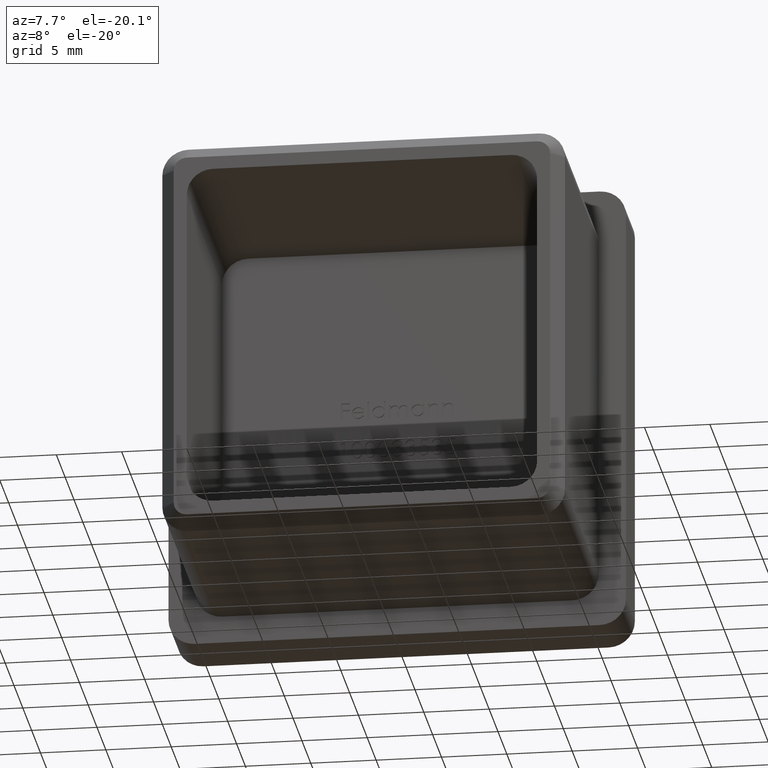
[diagram: clean part render]
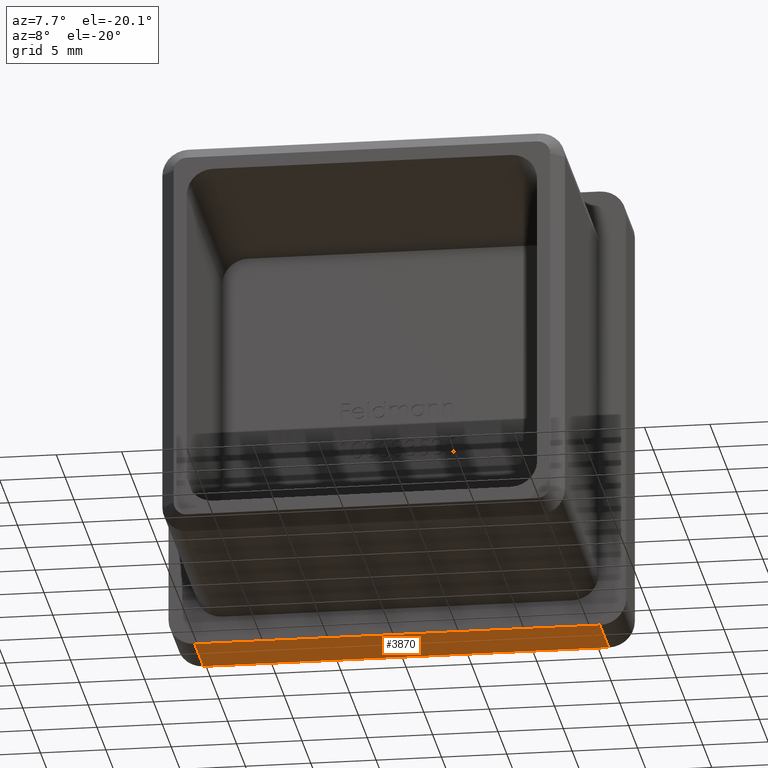
[diagram: same view with one face highlighted and labeled with its STEP entity id]
A machine part, auxiliary view. The second image highlights one B-rep face of the part: STEP entity #3870.
In plain terms, the highlighted planar face has unit normal (0, 0, 1).
Its self-contained STEP definition (entity closure, byte-faithful):
#361 = CARTESIAN_POINT ( 'NONE',  ( -17.50000000000000000, 5.000000000000000000, -17.50000000000000000 ) ) ;
#864 = LINE ( 'NONE', #12089, #6607 ) ;
#1294 = CARTESIAN_POINT ( 'NONE',  ( -15.50000000000000200, 5.000000000000000000, -17.50000000000000000 ) ) ;
#1671 = CARTESIAN_POINT ( 'NONE',  ( -17.50000000000000000, 5.000000000000000000, -17.50000000000000000 ) ) ;
#1787 = VERTEX_POINT ( 'NONE', #12824 ) ;
#2503 = ORIENTED_EDGE ( 'NONE', *, *, #7803, .T. ) ;
#2873 = CARTESIAN_POINT ( 'NONE',  ( -15.50000000000000200, 0.0000000000000000000, -17.50000000000000000 ) ) ;
#3044 = VERTEX_POINT ( 'NONE', #2873 ) ;
#3870 = ADVANCED_FACE ( 'NONE', ( #7010 ), #11447, .F. ) ;
#4874 = LINE ( 'NONE', #361, #11777 ) ;
#5376 = CARTESIAN_POINT ( 'NONE',  ( -17.50000000000000000, 0.0000000000000000000, -17.50000000000000000 ) ) ;
#5400 = ORIENTED_EDGE ( 'NONE', *, *, #13432, .T. ) ;
#5780 = EDGE_CURVE ( 'NONE', #8261, #3044, #10766, .T. ) ;
#6176 = DIRECTION ( 'NONE',  ( -0.0000000000000000000, 1.000000000000000000, -0.0000000000000000000 ) ) ;
#6412 = DIRECTION ( 'NONE',  ( -1.000000000000000000, -0.0000000000000000000, -0.0000000000000000000 ) ) ;
#6607 = VECTOR ( 'NONE', #8517, 1000.000000000000000 ) ;
#7010 = FACE_OUTER_BOUND ( 'NONE', #14365, .T. ) ;
#7247 = AXIS2_PLACEMENT_3D ( 'NONE', #1671, #15111, #8956 ) ;
#7803 = EDGE_CURVE ( 'NONE', #3044, #14786, #9321, .T. ) ;
#8261 = VERTEX_POINT ( 'NONE', #8697 ) ;
#8517 = DIRECTION ( 'NONE',  ( 0.0000000000000000000, -1.000000000000000000, 0.0000000000000000000 ) ) ;
#8697 = CARTESIAN_POINT ( 'NONE',  ( 15.50000000000000000, 0.0000000000000000000, -17.50000000000000000 ) ) ;
#8723 = EDGE_CURVE ( 'NONE', #1787, #14786, #4874, .T. ) ;
#8956 = DIRECTION ( 'NONE',  ( 1.000000000000000000, 0.0000000000000000000, -0.0000000000000000000 ) ) ;
#9321 = LINE ( 'NONE', #13601, #13354 ) ;
#10012 = VECTOR ( 'NONE', #12739, 1000.000000000000000 ) ;
#10766 = LINE ( 'NONE', #5376, #10012 ) ;
#11447 = PLANE ( 'NONE',  #7247 ) ;
#11777 = VECTOR ( 'NONE', #6412, 1000.000000000000000 ) ;
#12089 = CARTESIAN_POINT ( 'NONE',  ( 15.50000000000000000, 5.000000000000000000, -17.50000000000000000 ) ) ;
#12739 = DIRECTION ( 'NONE',  ( -1.000000000000000000, -0.0000000000000000000, -0.0000000000000000000 ) ) ;
#12824 = CARTESIAN_POINT ( 'NONE',  ( 15.50000000000000000, 5.000000000000000000, -17.50000000000000000 ) ) ;
#13354 = VECTOR ( 'NONE', #6176, 1000.000000000000000 ) ;
#13432 = EDGE_CURVE ( 'NONE', #1787, #8261, #864, .T. ) ;
#13601 = CARTESIAN_POINT ( 'NONE',  ( -15.50000000000000200, 5.000000000000000000, -17.50000000000000000 ) ) ;
#13867 = ORIENTED_EDGE ( 'NONE', *, *, #5780, .T. ) ;
#14239 = ORIENTED_EDGE ( 'NONE', *, *, #8723, .F. ) ;
#14365 = EDGE_LOOP ( 'NONE', ( #14239, #5400, #13867, #2503 ) ) ;
#14786 = VERTEX_POINT ( 'NONE', #1294 ) ;
#15111 = DIRECTION ( 'NONE',  ( 0.0000000000000000000, 0.0000000000000000000, 1.000000000000000000 ) ) ;